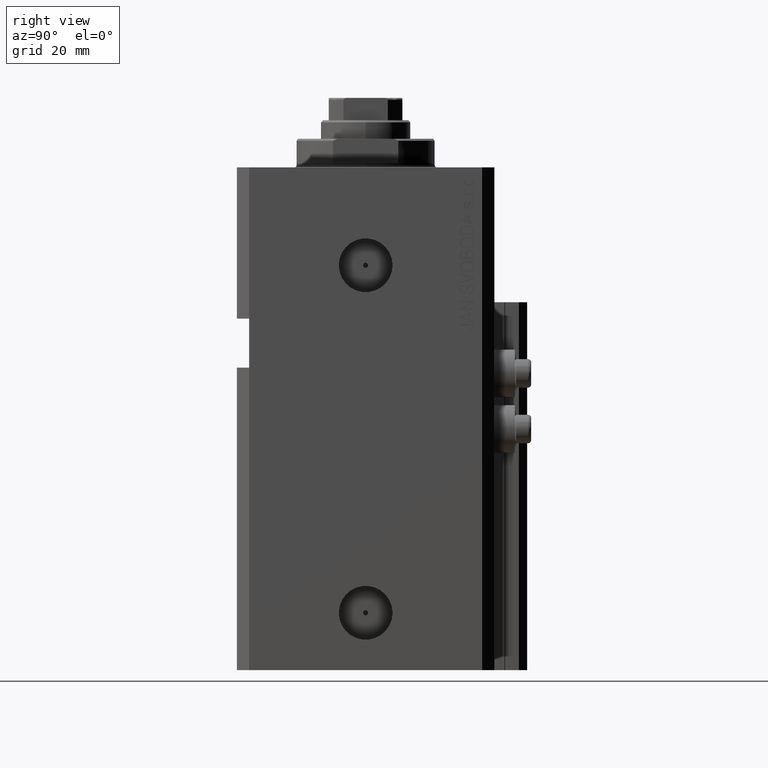
[diagram: clean part render]
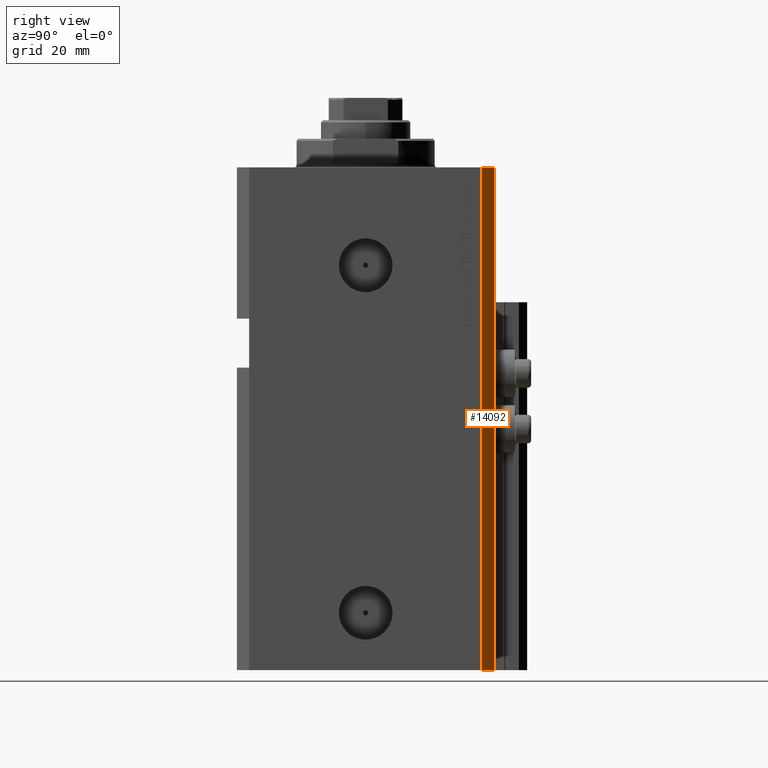
[diagram: same view with one face highlighted and labeled with its STEP entity id]
A machine part, right view. The second image highlights one B-rep face of the part: STEP entity #14092.
In plain terms, the highlighted planar face has unit normal (0.7071, 0.7071, 0).
Its self-contained STEP definition (entity closure, byte-faithful):
#74 = EDGE_CURVE ( 'NONE', #17597, #37135, #10580, .T. ) ;
#2980 = EDGE_CURVE ( 'NONE', #23699, #37135, #42304, .T. ) ;
#3135 = VECTOR ( 'NONE', #37834, 1000.000000000000114 ) ;
#7169 = VECTOR ( 'NONE', #27783, 1000.000000000000000 ) ;
#9064 = CARTESIAN_POINT ( 'NONE',  ( 39.50000000000056843, 31.50000000000000000, 0.000000000000000000 ) ) ;
#10580 = LINE ( 'NONE', #30484, #3135 ) ;
#10930 = DIRECTION ( 'NONE',  ( -0.7071067811865355823, 0.7071067811865594521, 0.000000000000000000 ) ) ;
#11165 = CARTESIAN_POINT ( 'NONE',  ( 42.50000000000051870, 28.49999999999995381, -123.0000000000000000 ) ) ;
#12713 = CARTESIAN_POINT ( 'NONE',  ( 42.50000000000051870, 28.49999999999995381, 0.000000000000000000 ) ) ;
#12724 = EDGE_LOOP ( 'NONE', ( #35547, #42629, #14644, #31304 ) ) ;
#13481 = LINE ( 'NONE', #16687, #37164 ) ;
#14092 = ADVANCED_FACE ( 'NONE', ( #21750 ), #21251, .T. ) ;
#14644 = ORIENTED_EDGE ( 'NONE', *, *, #29950, .T. ) ;
#16687 = CARTESIAN_POINT ( 'NONE',  ( 42.50000000000051870, 28.49999999999995381, -123.0000000000000000 ) ) ;
#17294 = CARTESIAN_POINT ( 'NONE',  ( 39.50000000000056843, 31.50000000000000000, -123.0000000000000000 ) ) ;
#17597 = VERTEX_POINT ( 'NONE', #12713 ) ;
#19927 = CARTESIAN_POINT ( 'NONE',  ( 39.50000000000056843, 31.50000000000000000, -123.0000000000000000 ) ) ;
#21251 = PLANE ( 'NONE',  #44373 ) ;
#21750 = FACE_OUTER_BOUND ( 'NONE', #12724, .T. ) ;
#23699 = VERTEX_POINT ( 'NONE', #17294 ) ;
#24020 = VECTOR ( 'NONE', #47821, 1000.000000000000000 ) ;
#24695 = VERTEX_POINT ( 'NONE', #42836 ) ;
#27783 = DIRECTION ( 'NONE',  ( 0.000000000000000000, 0.000000000000000000, 1.000000000000000000 ) ) ;
#27993 = DIRECTION ( 'NONE',  ( -0.7071067811865356934, 0.7071067811865594521, 0.000000000000000000 ) ) ;
#29950 = EDGE_CURVE ( 'NONE', #24695, #23699, #13481, .T. ) ;
#30484 = CARTESIAN_POINT ( 'NONE',  ( 42.50000000000051870, 28.49999999999995381, 0.000000000000000000 ) ) ;
#31304 = ORIENTED_EDGE ( 'NONE', *, *, #2980, .T. ) ;
#35547 = ORIENTED_EDGE ( 'NONE', *, *, #74, .F. ) ;
#36256 = DIRECTION ( 'NONE',  ( 0.7071067811865594521, 0.7071067811865355823, -0.000000000000000000 ) ) ;
#36864 = EDGE_CURVE ( 'NONE', #24695, #17597, #36989, .T. ) ;
#36989 = LINE ( 'NONE', #44616, #24020 ) ;
#37135 = VERTEX_POINT ( 'NONE', #9064 ) ;
#37164 = VECTOR ( 'NONE', #27993, 1000.000000000000114 ) ;
#37834 = DIRECTION ( 'NONE',  ( -0.7071067811865356934, 0.7071067811865594521, 0.000000000000000000 ) ) ;
#42304 = LINE ( 'NONE', #19927, #7169 ) ;
#42629 = ORIENTED_EDGE ( 'NONE', *, *, #36864, .F. ) ;
#42836 = CARTESIAN_POINT ( 'NONE',  ( 42.50000000000051870, 28.49999999999995381, -123.0000000000000000 ) ) ;
#44373 = AXIS2_PLACEMENT_3D ( 'NONE', #11165, #36256, #10930 ) ;
#44616 = CARTESIAN_POINT ( 'NONE',  ( 42.50000000000051870, 28.49999999999995381, -123.0000000000000000 ) ) ;
#47821 = DIRECTION ( 'NONE',  ( 0.000000000000000000, 0.000000000000000000, 1.000000000000000000 ) ) ;